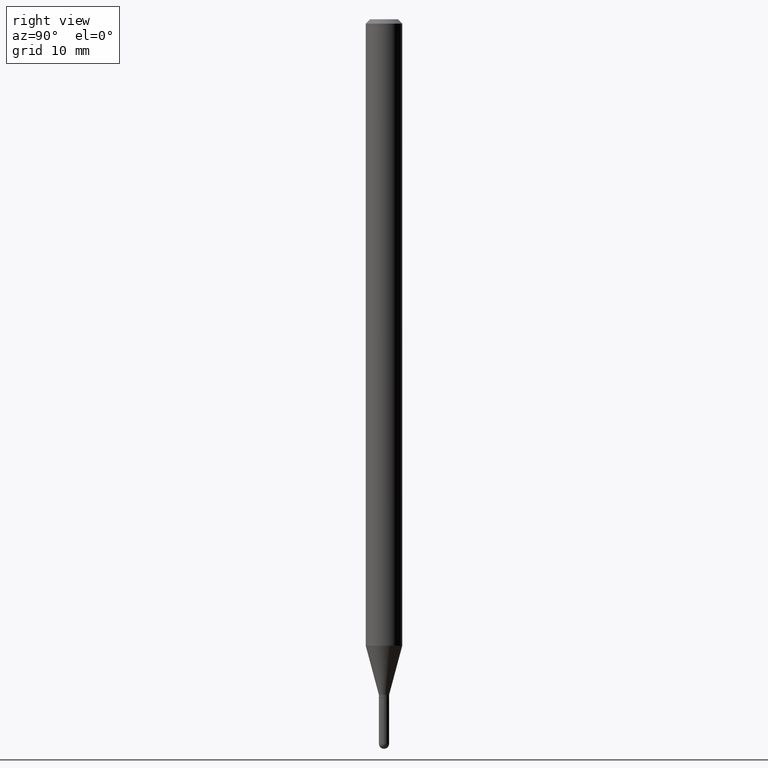
[diagram: clean part render]
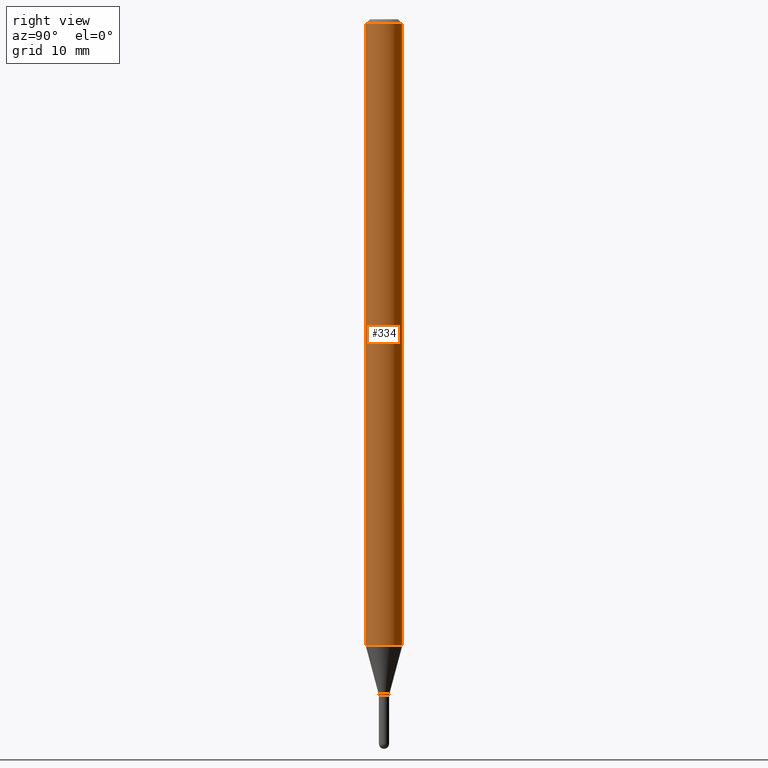
[diagram: same view with one face highlighted and labeled with its STEP entity id]
A machine part, right view. The second image highlights one B-rep face of the part: STEP entity #334.
In plain terms, the highlighted cylindrical surface (edge-blend (fillet) strip) has radius 1.5875 mm, axis along (-0, 0, 1).
Its self-contained STEP definition (entity closure, byte-faithful):
#5 = DIRECTION ( 'NONE',  ( -2.445429610108093840E-29, 3.491537469856373273E-15, 1.000000000000000000 ) ) ;
#15 = VECTOR ( 'NONE', #145, 39.37007874015748143 ) ;
#17 = VERTEX_POINT ( 'NONE', #35 ) ;
#25 = EDGE_CURVE ( 'NONE', #142, #346, #508, .T. ) ;
#35 = CARTESIAN_POINT ( 'NONE',  ( 4.440892098501154699E-16, 0.06249999999999995143, -0.01500000000000054588 ) ) ;
#62 = AXIS2_PLACEMENT_3D ( 'NONE', #340, #233, #266 ) ;
#72 = CARTESIAN_POINT ( 'NONE',  ( 5.250478507593680395E-29, -7.496532457185947677E-15, -2.147057713659399347 ) ) ;
#73 = CYLINDRICAL_SURFACE ( 'NONE', #62, 0.06250000000000000000 ) ;
#99 = EDGE_CURVE ( 'NONE', #427, #17, #171, .T. ) ;
#142 = VERTEX_POINT ( 'NONE', #325 ) ;
#145 = DIRECTION ( 'NONE',  ( -2.445429610108093840E-29, 3.491537469856373273E-15, 1.000000000000000000 ) ) ;
#149 = CIRCLE ( 'NONE', #323, 0.06250000000000000000 ) ;
#171 = LINE ( 'NONE', #209, #214 ) ;
#209 = CARTESIAN_POINT ( 'NONE',  ( 4.440892098500625669E-16, 0.06250000000000000000, -2.182210918660233295E-16 ) ) ;
#214 = VECTOR ( 'NONE', #5, 39.37007874015748143 ) ;
#233 = DIRECTION ( 'NONE',  ( -2.445429610108093840E-29, 3.491537469856373273E-15, 1.000000000000000000 ) ) ;
#266 = DIRECTION ( 'NONE',  ( -6.982962677686265922E-15, -1.000000000000000000, 3.491537469856373273E-15 ) ) ;
#269 = ORIENTED_EDGE ( 'NONE', *, *, #361, .T. ) ;
#281 = ORIENTED_EDGE ( 'NONE', *, *, #303, .F. ) ;
#303 = EDGE_CURVE ( 'NONE', #346, #17, #149, .T. ) ;
#323 = AXIS2_PLACEMENT_3D ( 'NONE', #460, #467, #470 ) ;
#325 = CARTESIAN_POINT ( 'NONE',  ( -4.364351673553391609E-16, -0.06250000000000749401, -2.147057713659398903 ) ) ;
#334 = ADVANCED_FACE ( 'NONE', ( #426 ), #73, .T. ) ;
#340 = CARTESIAN_POINT ( 'NONE',  ( 0.000000000000000000, 0.000000000000000000, 0.000000000000000000 ) ) ;
#345 = DIRECTION ( 'NONE',  ( -2.445429610108093840E-29, 3.491537469856373273E-15, 1.000000000000000000 ) ) ;
#346 = VERTEX_POINT ( 'NONE', #459 ) ;
#351 = CIRCLE ( 'NONE', #408, 0.06250000000000000000 ) ;
#361 = EDGE_CURVE ( 'NONE', #142, #427, #351, .T. ) ;
#382 = EDGE_LOOP ( 'NONE', ( #269, #430, #281, #490 ) ) ;
#408 = AXIS2_PLACEMENT_3D ( 'NONE', #72, #345, #466 ) ;
#426 = FACE_OUTER_BOUND ( 'NONE', #382, .T. ) ;
#427 = VERTEX_POINT ( 'NONE', #509 ) ;
#430 = ORIENTED_EDGE ( 'NONE', *, *, #99, .T. ) ;
#436 = CARTESIAN_POINT ( 'NONE',  ( -4.364351673553916201E-16, -0.06250000000000000000, 2.182210918660233295E-16 ) ) ;
#459 = CARTESIAN_POINT ( 'NONE',  ( -4.364351673553912750E-16, -0.06250000000000005551, -0.01500000000000011047 ) ) ;
#460 = CARTESIAN_POINT ( 'NONE',  ( 3.668144415162220984E-31, -5.237306204784674417E-17, -0.01500000000000032904 ) ) ;
#466 = DIRECTION ( 'NONE',  ( -6.982962677686265922E-15, -1.000000000000000000, 4.370956789862821150E-15 ) ) ;
#467 = DIRECTION ( 'NONE',  ( -2.445429610108093840E-29, 3.491537469856373273E-15, 1.000000000000000000 ) ) ;
#470 = DIRECTION ( 'NONE',  ( -6.982962677686265922E-15, -1.000000000000000000, 3.483106191921935554E-15 ) ) ;
#490 = ORIENTED_EDGE ( 'NONE', *, *, #25, .F. ) ;
#508 = LINE ( 'NONE', #436, #15 ) ;
#509 = CARTESIAN_POINT ( 'NONE',  ( 4.440892098501148782E-16, 0.06249999999999247824, -2.147057713659399347 ) ) ;